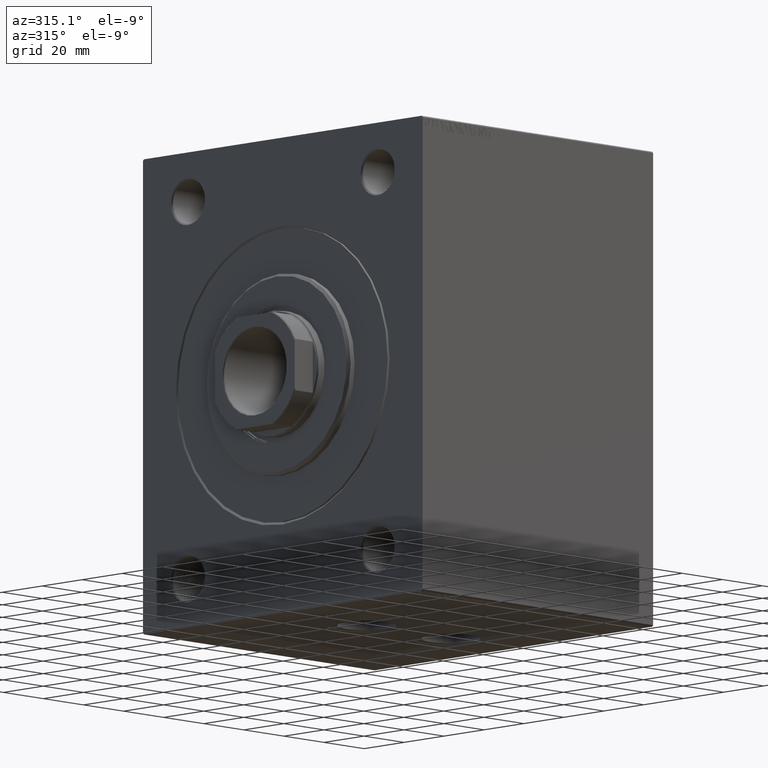
[diagram: clean part render]
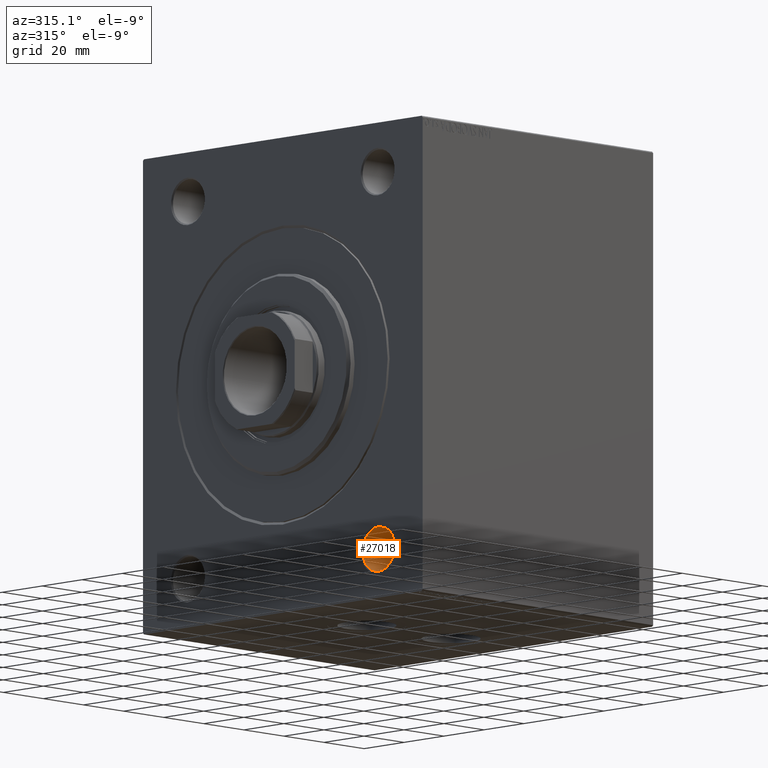
[diagram: same view with one face highlighted and labeled with its STEP entity id]
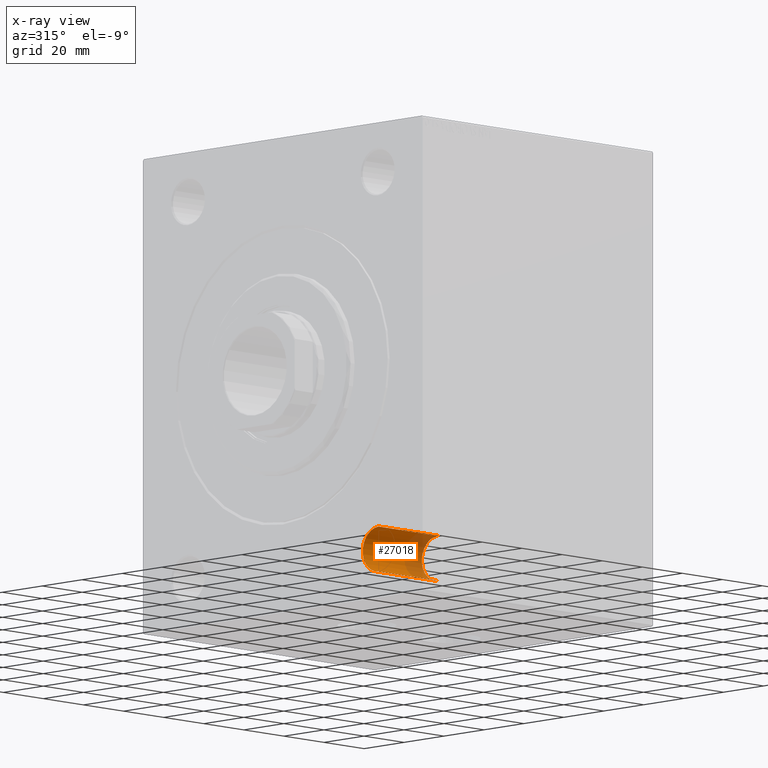
[diagram: x-ray of the same camera — body ghosted, the highlighted face saturated]
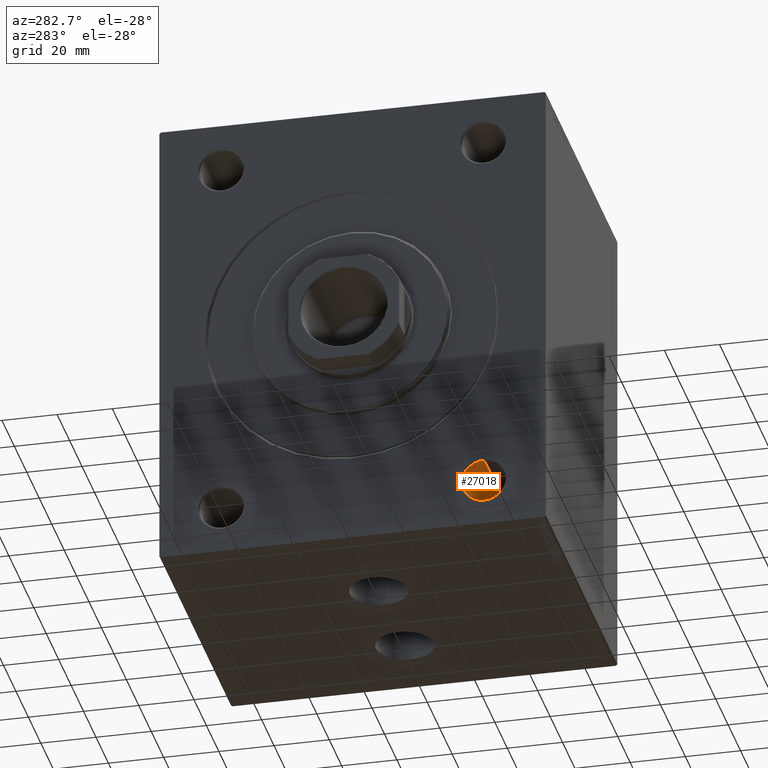
[diagram: same view with one face highlighted and labeled with its STEP entity id]
A machine part, auxiliary view. The second image highlights one B-rep face of the part: STEP entity #27018.
The next image is the same camera in x-ray: the body ghosted, the highlighted face saturated — about 30% of this face is hidden behind the body in this view.
A second angle (auxiliary view) of the same face is appended — the face is thin or edge-on in the first view.
In plain terms, the highlighted cylindrical surface (edge-blend (fillet) strip) has radius 8 mm, axis along (-1, -0, -0).
Its self-contained STEP definition (entity closure, byte-faithful):
#156 = DIRECTION ( 'NONE',  ( -1.000000000000000000, -0.000000000000000000, -0.000000000000000000 ) ) ;
#343 = CIRCLE ( 'NONE', #13559, 7.999999999999992895 ) ;
#1419 = CARTESIAN_POINT ( 'NONE',  ( 0.000000000000000000, -47.50000000000000000, -67.50000000000001421 ) ) ;
#1930 = VECTOR ( 'NONE', #156, 1000.000000000000000 ) ;
#2954 = CARTESIAN_POINT ( 'NONE',  ( 0.000000000000000000, -47.50000000000000000, -59.50000000000002842 ) ) ;
#3379 = AXIS2_PLACEMENT_3D ( 'NONE', #39211, #24484, #27724 ) ;
#3415 = CARTESIAN_POINT ( 'NONE',  ( 0.5000000000000698330, -47.50000000000000000, -67.50000000000001421 ) ) ;
#4415 = FACE_OUTER_BOUND ( 'NONE', #45395, .T. ) ;
#6411 = DIRECTION ( 'NONE',  ( -1.000000000000000000, 0.000000000000000000, 0.000000000000000000 ) ) ;
#7995 = VERTEX_POINT ( 'NONE', #35330 ) ;
#9988 = CIRCLE ( 'NONE', #3379, 7.999999999999992895 ) ;
#11085 = VERTEX_POINT ( 'NONE', #12994 ) ;
#12994 = CARTESIAN_POINT ( 'NONE',  ( 0.5000000000000698330, -47.50000000000000000, -75.50000000000001421 ) ) ;
#13559 = AXIS2_PLACEMENT_3D ( 'NONE', #3415, #6411, #23671 ) ;
#14993 = DIRECTION ( 'NONE',  ( 0.000000000000000000, 0.000000000000000000, 1.000000000000000000 ) ) ;
#15078 = ORIENTED_EDGE ( 'NONE', *, *, #45366, .T. ) ;
#15677 = CYLINDRICAL_SURFACE ( 'NONE', #23883, 7.999999999999992895 ) ;
#15860 = ORIENTED_EDGE ( 'NONE', *, *, #41299, .F. ) ;
#17985 = CARTESIAN_POINT ( 'NONE',  ( 30.00000000000000000, -47.50000000000000000, -59.50000000000002842 ) ) ;
#19791 = VERTEX_POINT ( 'NONE', #22062 ) ;
#22062 = CARTESIAN_POINT ( 'NONE',  ( 30.00000000000000000, -47.50000000000000000, -75.50000000000001421 ) ) ;
#22285 = DIRECTION ( 'NONE',  ( -1.000000000000000000, -0.000000000000000000, -0.000000000000000000 ) ) ;
#23671 = DIRECTION ( 'NONE',  ( 0.000000000000000000, 0.000000000000000000, -1.000000000000000000 ) ) ;
#23883 = AXIS2_PLACEMENT_3D ( 'NONE', #1419, #29699, #14993 ) ;
#24484 = DIRECTION ( 'NONE',  ( -1.000000000000000000, -0.000000000000000000, -0.000000000000000000 ) ) ;
#24940 = ORIENTED_EDGE ( 'NONE', *, *, #37994, .T. ) ;
#25281 = CARTESIAN_POINT ( 'NONE',  ( 0.000000000000000000, -47.50000000000000000, -75.50000000000001421 ) ) ;
#26477 = EDGE_CURVE ( 'NONE', #19791, #11085, #35863, .T. ) ;
#26998 = VERTEX_POINT ( 'NONE', #17985 ) ;
#27018 = ADVANCED_FACE ( 'NONE', ( #4415 ), #15677, .F. ) ;
#27724 = DIRECTION ( 'NONE',  ( 0.000000000000000000, 0.000000000000000000, 1.000000000000000000 ) ) ;
#29699 = DIRECTION ( 'NONE',  ( -1.000000000000000000, -0.000000000000000000, -0.000000000000000000 ) ) ;
#31204 = VECTOR ( 'NONE', #22285, 1000.000000000000000 ) ;
#33479 = ORIENTED_EDGE ( 'NONE', *, *, #26477, .F. ) ;
#34467 = LINE ( 'NONE', #2954, #1930 ) ;
#35330 = CARTESIAN_POINT ( 'NONE',  ( 0.5000000000000698330, -47.50000000000000000, -59.50000000000002842 ) ) ;
#35863 = LINE ( 'NONE', #25281, #31204 ) ;
#37994 = EDGE_CURVE ( 'NONE', #7995, #11085, #343, .T. ) ;
#39211 = CARTESIAN_POINT ( 'NONE',  ( 30.00000000000000000, -47.50000000000000000, -67.50000000000001421 ) ) ;
#41299 = EDGE_CURVE ( 'NONE', #26998, #19791, #9988, .T. ) ;
#45366 = EDGE_CURVE ( 'NONE', #26998, #7995, #34467, .T. ) ;
#45395 = EDGE_LOOP ( 'NONE', ( #33479, #15860, #15078, #24940 ) ) ;